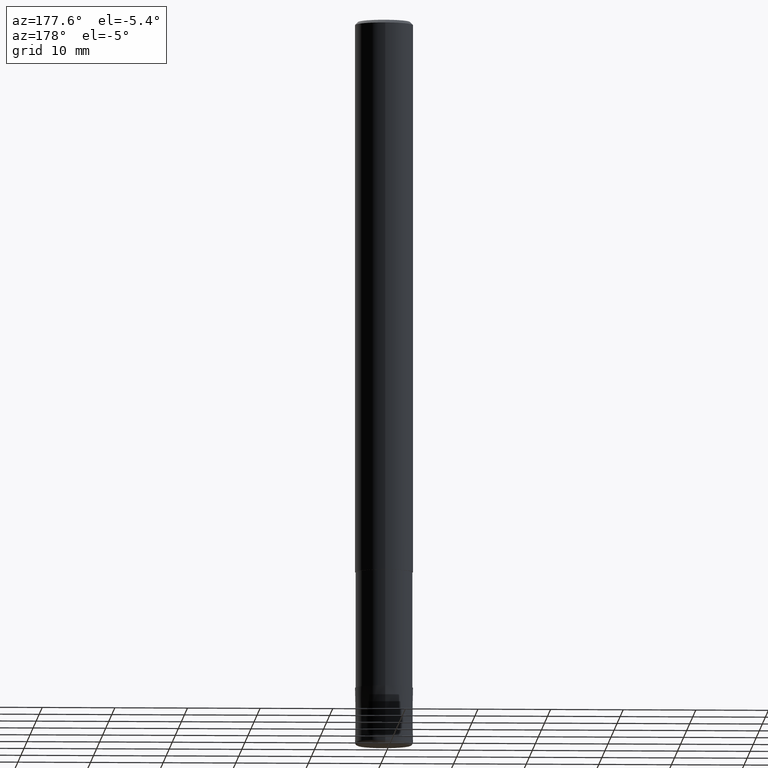
[diagram: clean part render]
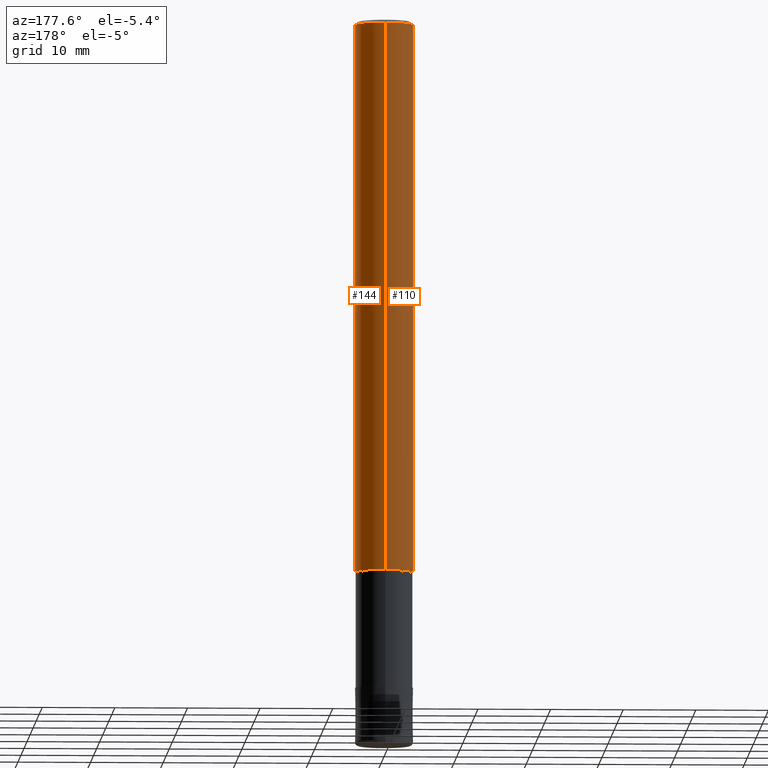
[diagram: same view with one multi-face feature highlighted, each face labeled with its STEP entity id]
A machine part, auxiliary view. The highlighted faces form ONE feature: a constant-radius fillet chain: 2 tangent blend faces with common blend radius 4 mm. The faces share edges in the B-rep.
Their STEP definitions:
[1] entity #110 (Cylinder):
#92=EDGE_CURVE('',#102,#180,#229,.T.);
#96=EDGE_CURVE('',#124,#178,#233,.T.);
#102=VERTEX_POINT('',#240);
#110=ADVANCED_FACE('',(#250),#251,.T.);
#124=VERTEX_POINT('',#266);
#174=EDGE_CURVE('',#180,#178,#324,.T.);
#178=VERTEX_POINT('',#329);
#180=VERTEX_POINT('',#331);
#188=EDGE_CURVE('',#124,#102,#341,.T.);
#229=CIRCLE('',#375,4.0);
#233=CIRCLE('',#381,4.0);
#240=CARTESIAN_POINT('',(4.89842541528951E-016,-4.0,-0.400000000000006));
#250=FACE_OUTER_BOUND('',#401,.T.);
#251=CYLINDRICAL_SURFACE('',#402,4.0);
#266=CARTESIAN_POINT('',(4.89842541528951E-016,-4.0,-76.0));
#324=LINE('',#491,#492);
#329=CARTESIAN_POINT('',(0.0,4.0,-76.0));
#331=CARTESIAN_POINT('',(0.0,4.0,-0.400000000000006));
#341=LINE('',#510,#511);
#375=AXIS2_PLACEMENT_3D('',#540,#541,#542);
#381=AXIS2_PLACEMENT_3D('',#546,#547,#548);
#401=EDGE_LOOP('',(#576,#577,#578,#579));
#402=AXIS2_PLACEMENT_3D('',#580,#581,#582);
#491=CARTESIAN_POINT('',(-4.89842541528951E-016,4.0,-38.2));
#492=VECTOR('',#681,1.0);
#510=CARTESIAN_POINT('',(4.89842541528951E-016,-4.0,-38.2));
#511=VECTOR('',#704,1.0);
#540=CARTESIAN_POINT('',(0.0,0.0,-0.400000000000006));
#541=DIRECTION('',(0.0,0.0,-1.0));
#542=DIRECTION('',(0.0,1.0,0.0));
#546=CARTESIAN_POINT('',(0.0,0.0,-76.0));
#547=DIRECTION('',(0.0,0.0,-1.0));
#548=DIRECTION('',(0.0,1.0,0.0));
#576=ORIENTED_EDGE('',*,*,#174,.T.);
#577=ORIENTED_EDGE('',*,*,#96,.F.);
#578=ORIENTED_EDGE('',*,*,#188,.T.);
#579=ORIENTED_EDGE('',*,*,#92,.T.);
#580=CARTESIAN_POINT('',(0.0,0.0,-38.2));
#581=DIRECTION('',(-0.0,-0.0,1.0));
#582=DIRECTION('',(0.0,1.0,0.0));
#681=DIRECTION('',(0.0,0.0,-1.0));
#704=DIRECTION('',(-0.0,-0.0,1.0));
[2] entity #144 (Cylinder):
#94=EDGE_CURVE('',#178,#124,#231,.T.);
#102=VERTEX_POINT('',#240);
#124=VERTEX_POINT('',#266);
#144=ADVANCED_FACE('',(#290),#291,.T.);
#164=EDGE_CURVE('',#180,#102,#314,.T.);
#174=EDGE_CURVE('',#180,#178,#324,.T.);
#178=VERTEX_POINT('',#329);
#180=VERTEX_POINT('',#331);
#188=EDGE_CURVE('',#124,#102,#341,.T.);
#231=CIRCLE('',#378,4.0);
#240=CARTESIAN_POINT('',(4.89842541528951E-016,-4.0,-0.400000000000006));
#266=CARTESIAN_POINT('',(4.89842541528951E-016,-4.0,-76.0));
#290=FACE_OUTER_BOUND('',#448,.T.);
#291=CYLINDRICAL_SURFACE('',#449,4.0);
#314=CIRCLE('',#477,4.0);
#324=LINE('',#491,#492);
#329=CARTESIAN_POINT('',(0.0,4.0,-76.0));
#331=CARTESIAN_POINT('',(0.0,4.0,-0.400000000000006));
#341=LINE('',#510,#511);
#378=AXIS2_PLACEMENT_3D('',#543,#544,#545);
#448=EDGE_LOOP('',(#636,#637,#638,#639));
#449=AXIS2_PLACEMENT_3D('',#640,#641,#642);
#477=AXIS2_PLACEMENT_3D('',#669,#670,#671);
#491=CARTESIAN_POINT('',(-4.89842541528951E-016,4.0,-38.2));
#492=VECTOR('',#681,1.0);
#510=CARTESIAN_POINT('',(4.89842541528951E-016,-4.0,-38.2));
#511=VECTOR('',#704,1.0);
#543=CARTESIAN_POINT('',(0.0,0.0,-76.0));
#544=DIRECTION('',(0.0,0.0,-1.0));
#545=DIRECTION('',(0.0,1.0,0.0));
#636=ORIENTED_EDGE('',*,*,#174,.F.);
#637=ORIENTED_EDGE('',*,*,#164,.T.);
#638=ORIENTED_EDGE('',*,*,#188,.F.);
#639=ORIENTED_EDGE('',*,*,#94,.F.);
#640=CARTESIAN_POINT('',(0.0,0.0,-38.2));
#641=DIRECTION('',(-0.0,-0.0,1.0));
#642=DIRECTION('',(0.0,1.0,0.0));
#669=CARTESIAN_POINT('',(0.0,0.0,-0.400000000000006));
#670=DIRECTION('',(0.0,0.0,-1.0));
#671=DIRECTION('',(0.0,1.0,0.0));
#681=DIRECTION('',(0.0,0.0,-1.0));
#704=DIRECTION('',(-0.0,-0.0,1.0));